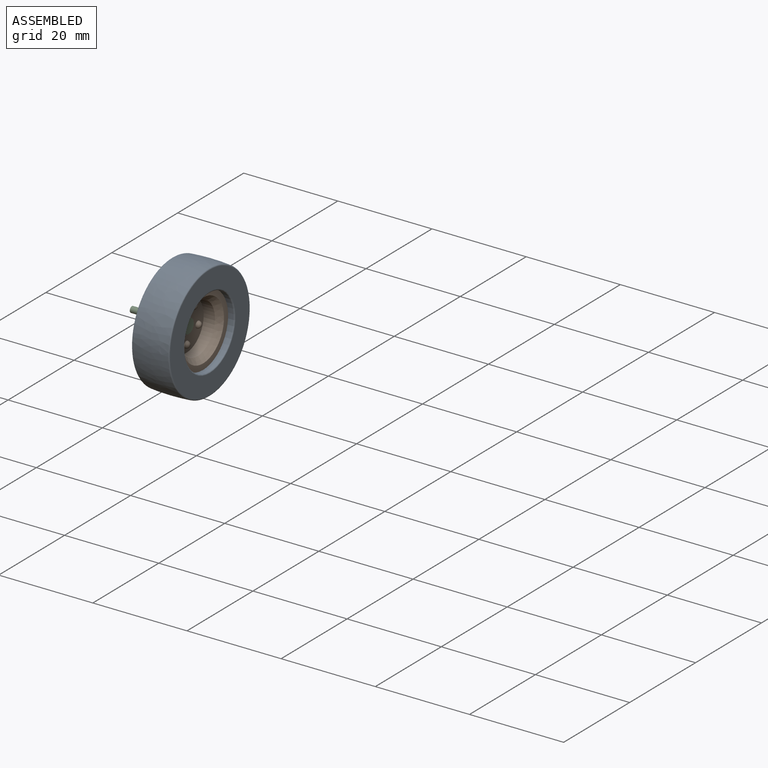
[diagram: assembled view]
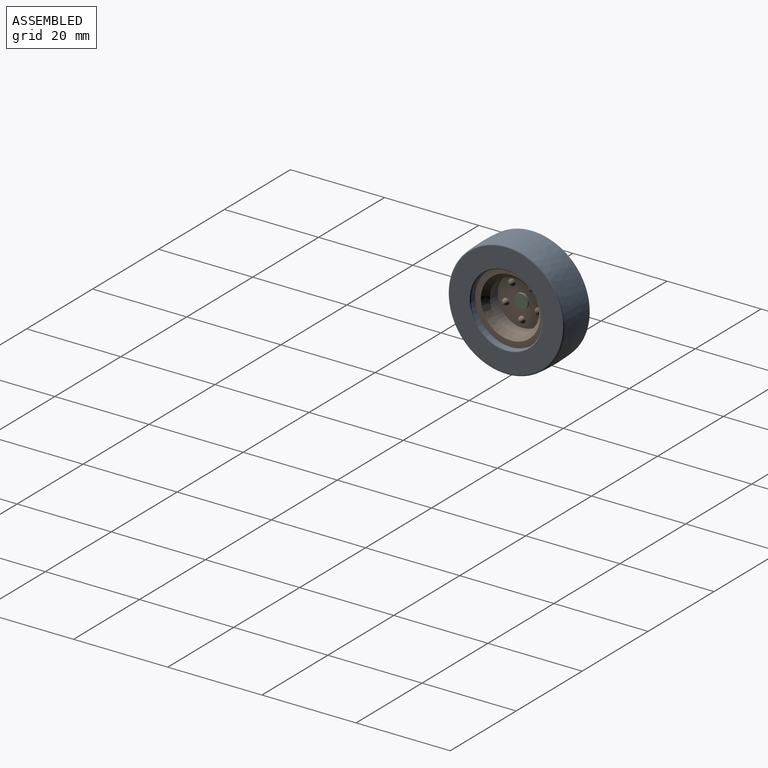
[diagram: assembled view, second angle]
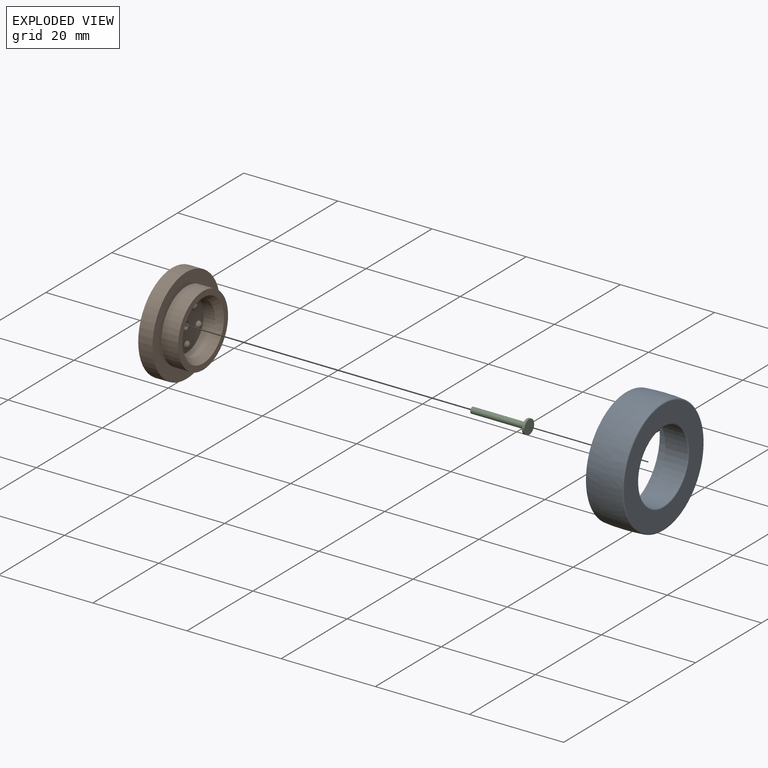
[diagram: exploded view]
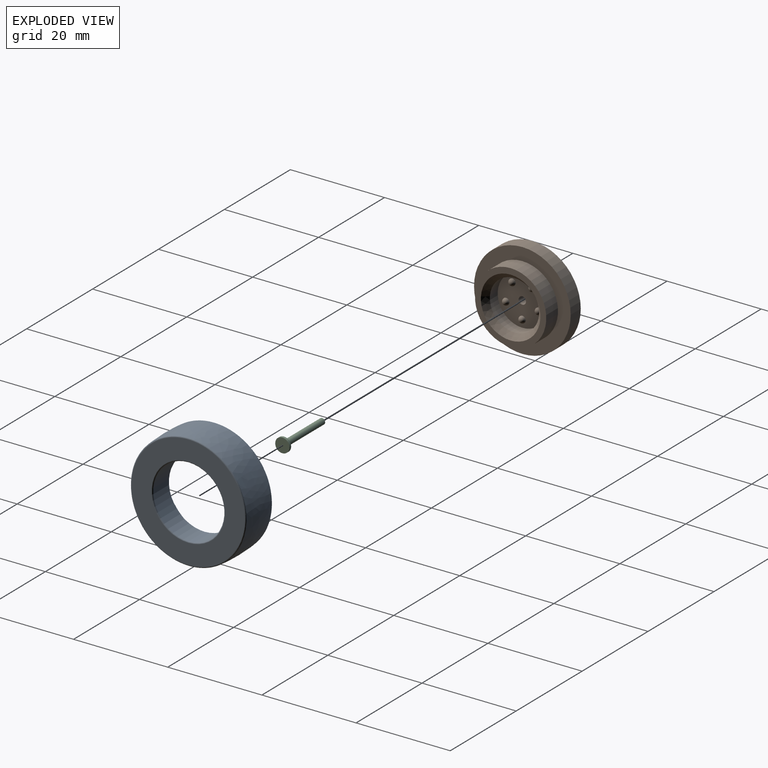
[diagram: exploded view, second angle]
ASSEMBLY  parts=3 mates=2
PART A: 9 faces, bbox 24.9x24.9x8 mm
  f0: cylinder r=7.57mm len=15.14mm, axis (0,0,1), area 223.5mm2, adj f4,f7
  f1: plane 24.08x24.08mm, normal (0,0,-1), area 124.2mm2, adj f5,f6
  f2: plane 24.08x24.07mm, normal (0,0,1), area 262.6mm2, adj f7,f8
  f3: bspline ~24.88x24.87mm, area 587.5mm2, adj f6,f8
  f4: plane 20.52x20.52mm, normal (0,0,-1), area 150.8mm2, adj f0,f5
  f5: cylinder r=10.26mm len=20.52mm, axis (0,0,-1), area 196.5mm2, adj f1,f4
  f6: bspline ~24.6x24.6mm, area 28.9mm2, adj f1,f3
  f7: torus R=7.82mm, axis (0,0,1), area 19.2mm2, adj f0,f2
  f8: bspline ~24.6x24.58mm, area 28.9mm2, adj f2,f3
PART B: 20 faces, bbox 20.5x7.1x20.5 mm
  f0: cylinder r=7.57mm len=15.14mm, axis (0,-1,0), area 169.1mm2, adj f1,f14
  f1: plane 15.14x15.14mm, normal (0,1,0), area 54.3mm2, adj f0,f2
  f2: cone r=5.23mm half-angle=43.1deg, axis (0,1,0), area 58.1mm2, adj f1,f3
  f3: cylinder r=5.23mm len=10.46mm, axis (0,-1,0), area 78.5mm2, adj f2,f4
  f4: plane 10.46x10.46mm, normal (0,1,0), area 76.1mm2, adj f3,f5,f15,f16,f17,f18,f19
  f5: cylinder r=0.79mm len=3.58mm, axis (0,-1,0), area 17.7mm2, adj f4,f6
  f6: plane 6.4x6.4mm, normal (0,-1,0), area 30.2mm2, adj f5,f7
  f7: cylinder r=3.2mm len=6.4mm, axis (0,-1,0), area 56.7mm2, adj f6,f8
  f8: plane 11.58x11.58mm, normal (0,-1,0), area 73.2mm2, adj f7,f9
  f9: cylinder r=5.79mm len=11.58mm, axis (0,-1,0), area 41.6mm2, adj f8,f10
  f10: plane 14.88x14.88mm, normal (0,-1,0), area 68.6mm2, adj f9,f11
  f11: cylinder r=7.44mm len=14.88mm, axis (0,-1,0), area 53.4mm2, adj f10,f12
  f12: plane 20.52x20.52mm, normal (0,-1,0), area 156.8mm2, adj f11,f13
  f13: cylinder r=10.26mm len=20.52mm, axis (0,-1,0), area 196.5mm2, adj f12,f14
  f14: plane 20.52x20.52mm, normal (0,1,0), area 150.8mm2, adj f0,f13
  f15: sphere r=0.71mm, area 3.2mm2, adj f4
  f16: sphere r=0.71mm, area 3.2mm2, adj f4
  f17: sphere r=0.71mm, area 3.2mm2, adj f4
  f18: sphere r=0.71mm, area 3.2mm2, adj f4
  f19: sphere r=0.71mm, area 3.2mm2, adj f4
PART C: 5 faces, bbox 3x12.1x3 mm
  f0: cylinder r=1.51mm len=3.02mm, axis (0,-1,0), area 4.8mm2, adj f1,f2
  f1: plane 3.02x3.02mm, normal (0,1,0), area 7.2mm2, adj f0
  f2: plane 3.02x3.02mm, normal (0,-1,0), area 5.9mm2, adj f0,f3
  f3: cylinder r=0.64mm len=11.58mm, axis (0,1,0), area 46.2mm2, adj f2,f4
  f4: plane 1.27x1.27mm, normal (0,-1,0), area 1.3mm2, adj f3
PLACE A rot(axis=(0,1,0),90deg) t=(-11.18,0,-11.29)mm fixed
PLACE B rot(axis=(0,0,-1),90deg) t=(-34.73,0,-11.29)mm
PLACE C rot(axis=(0,0,-1),90deg) t=(-16.14,0,-11.29)mm
MATE fastened C.f0 <-> B.f0  axis (-1,0,0) through (-16.14,0,-11.29)mm
MATE fastened A.f0 <-> B.f0  axis (-1,0,0) through (-16.14,0,-11.29)mm
